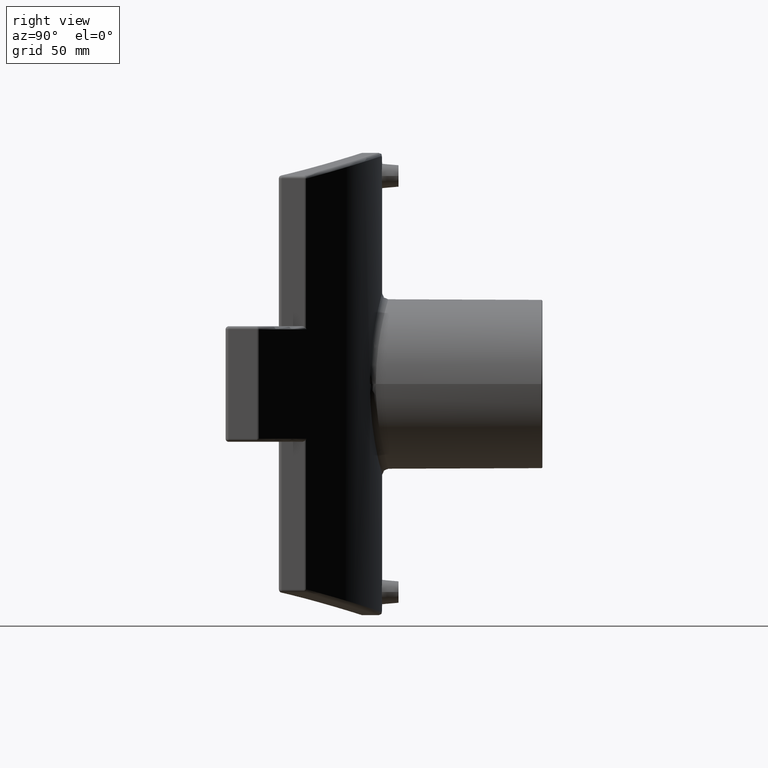
[diagram: clean part render]
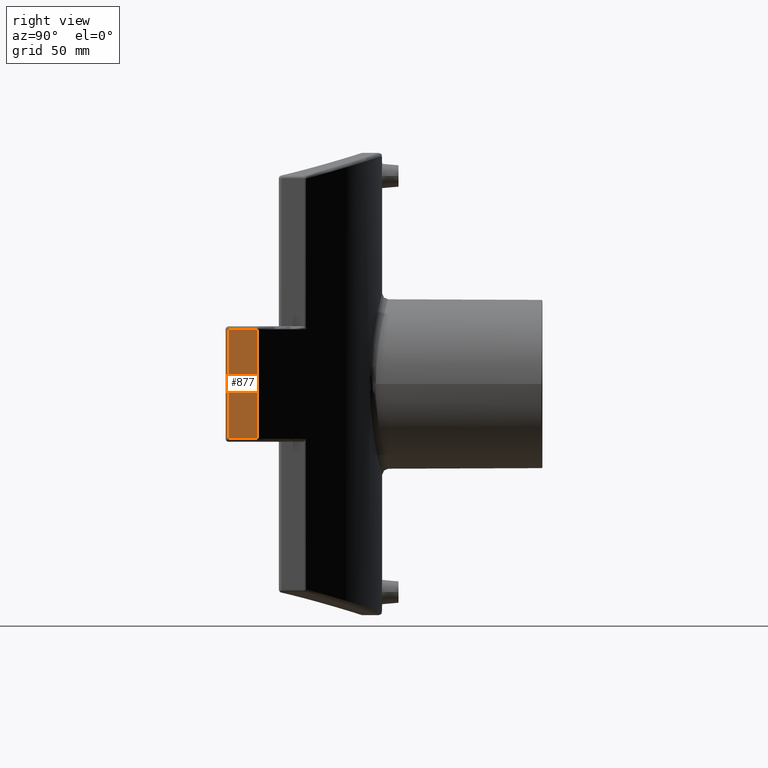
[diagram: same view with one face highlighted and labeled with its STEP entity id]
A machine part, right view. The second image highlights one B-rep face of the part: STEP entity #877.
In plain terms, the highlighted planar face has unit normal (1, 0, 0).
Its self-contained STEP definition (entity closure, byte-faithful):
#35=LINE('',#1888,#65);
#36=LINE('',#1977,#66);
#39=LINE('',#1981,#69);
#50=LINE('',#2130,#80);
#65=VECTOR('',#1158,71.);
#66=VECTOR('',#1193,71.);
#69=VECTOR('',#1198,18.3160193565503);
#80=VECTOR('',#1243,18.3160193565503);
#153=PLANE('',#1003);
#240=FACE_OUTER_BOUND('',#328,.T.);
#328=EDGE_LOOP('',(#783,#784,#785,#786));
#437=VERTEX_POINT('',#1863);
#443=VERTEX_POINT('',#1882);
#445=VERTEX_POINT('',#1890);
#455=VERTEX_POINT('',#1973);
#525=EDGE_CURVE('',#443,#437,#35,.T.);
#539=EDGE_CURVE('',#445,#455,#36,.T.);
#542=EDGE_CURVE('',#455,#443,#39,.T.);
#566=EDGE_CURVE('',#437,#445,#50,.T.);
#783=ORIENTED_EDGE('',*,*,#539,.F.);
#784=ORIENTED_EDGE('',*,*,#566,.F.);
#785=ORIENTED_EDGE('',*,*,#525,.F.);
#786=ORIENTED_EDGE('',*,*,#542,.F.);
#877=ADVANCED_FACE('',(#240),#153,.T.);
#1003=AXIS2_PLACEMENT_3D('',#2247,#1278,#1279);
#1158=DIRECTION('',(0.,0.,-1.));
#1193=DIRECTION('',(0.,0.,1.));
#1198=DIRECTION('',(0.,1.,0.));
#1243=DIRECTION('',(0.,-1.,0.));
#1278=DIRECTION('center_axis',(1.,0.,0.));
#1279=DIRECTION('ref_axis',(0.,1.,0.));
#1863=CARTESIAN_POINT('',(167.75,133.775698465753,-35.5));
#1882=CARTESIAN_POINT('',(167.75,133.775698465753,35.5));
#1888=CARTESIAN_POINT('',(167.75,133.775698465753,0.));
#1890=CARTESIAN_POINT('',(167.75,115.459679109202,-35.5));
#1973=CARTESIAN_POINT('',(167.75,115.459679109202,35.5));
#1977=CARTESIAN_POINT('',(167.75,115.459679109202,0.));
#1981=CARTESIAN_POINT('',(167.75,123.346726862885,35.5));
#2130=CARTESIAN_POINT('',(167.75,123.346726862885,-35.5));
#2247=CARTESIAN_POINT('Origin',(167.75,108.903340169161,0.));